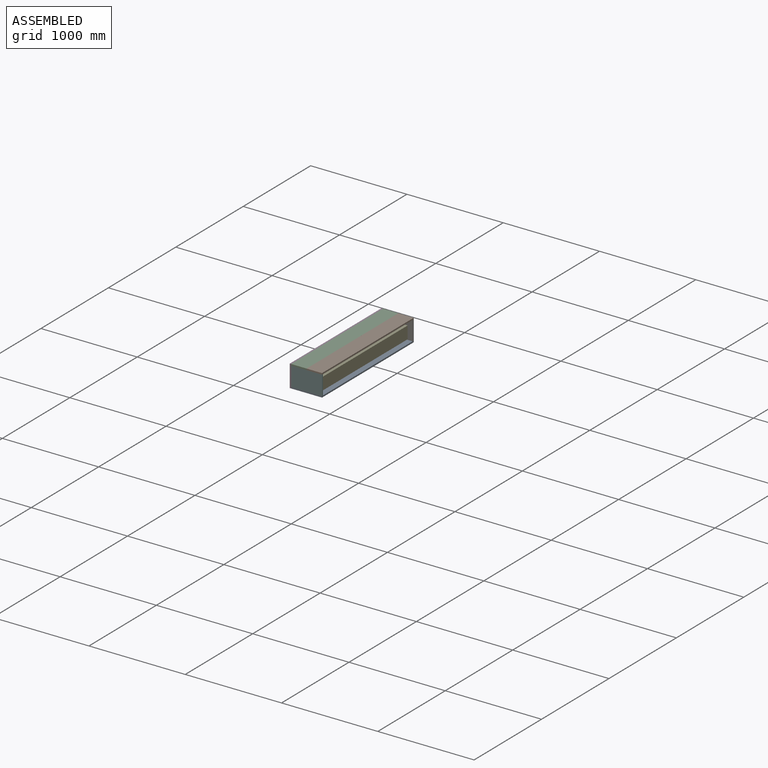
[diagram: assembled view]
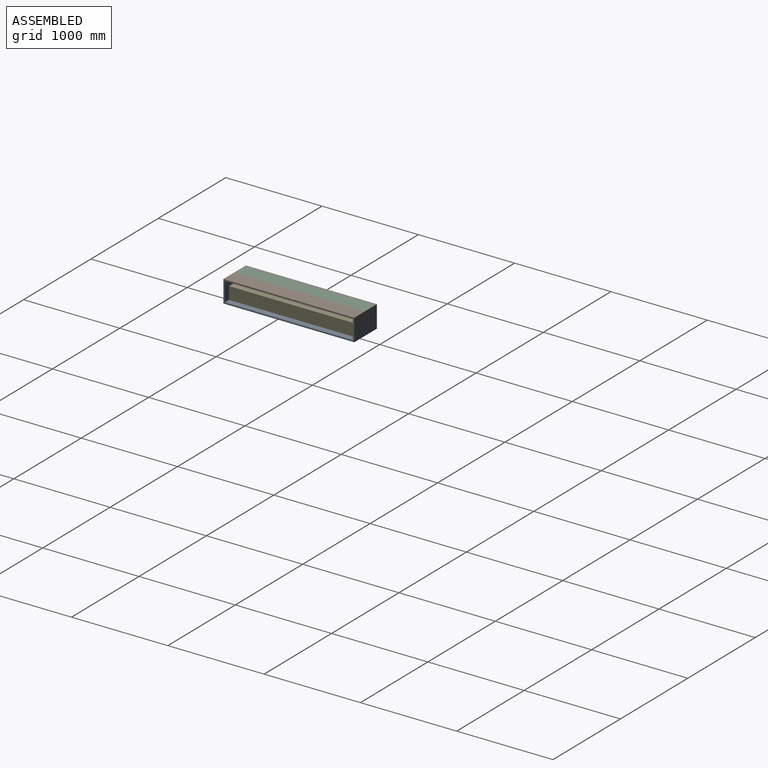
[diagram: assembled view, second angle]
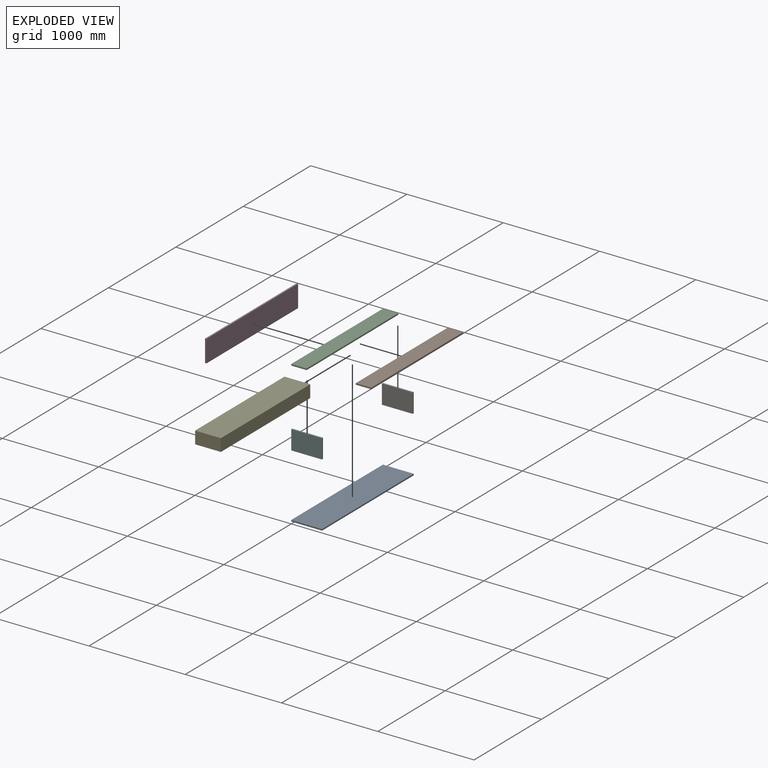
[diagram: exploded view]
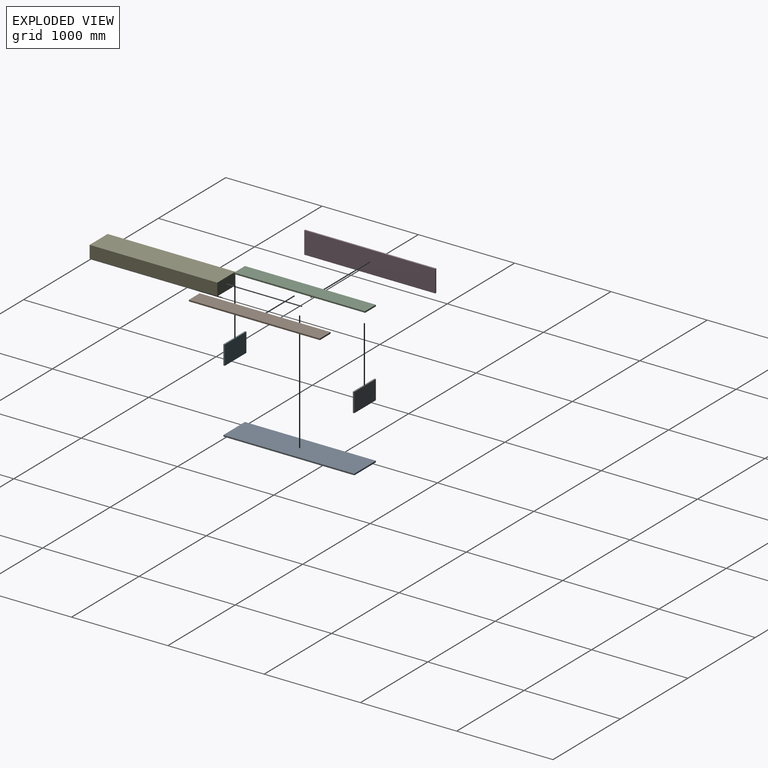
[diagram: exploded view, second angle]
FCSTD DOCUMENT  (FreeCAD 1.0R39109 (Git))
Label: piano_table
License: All rights reserved
LicenseURL: https://en.wikipedia.org/wiki/All_rights_reserved
objects: TechDraw::DrawViewDimension×10, App::Link×7, Part::Box×6, App::FeaturePython×6, TechDraw::DrawProjGroupItem×5, TechDraw::DrawSVGTemplate×3, TechDraw::DrawPage×3, App::DocumentObjectGroup×2, Spreadsheet::Sheet×1, Assembly::JointGroup×1, Assembly::AssemblyObject×1, TechDraw::DrawViewImage×1
note: 16 computed .brp shape members not serialized (recipe doc carries the construction recipe); baked Part::Feature solids carry a one-line shape summary decoded from their .brp

FEATURE [Spreadsheet::Sheet] Spreadsheet  label="Grundmaße"
  cells = A1='p145_width; B1=1326; A2='p145_depth; B2=268; A3='p145_height; B3=129; A4='box_inner_width; B4=1330; A5='box_inner_depth; B5=320; A6='box_inner_height; B6=200; A7='sheet_thickness; B7=15
FEATURE [Part::Box] Box  label="Seitenteil"
  AttacherType = Attacher::AttachEngine3D
  Height = 200
  Length = 320
  Width = 15
  expr: Height = Spreadsheet.B6
  expr: Length = Spreadsheet.B5
  expr: Width = Spreadsheet.B7
FEATURE [Part::Box] Box001  label="Boden"
  AttacherType = Attacher::AttachEngine3D
  Height = 15
  Length = 320
  Width = 1360
  expr: Height = Spreadsheet.B7
  expr: Length = Spreadsheet.B5
  expr: Width = Spreadsheet.B4 + 2 * Spreadsheet.B7
FEATURE [Part::Box] Box002  label="Klappe_oben"
  AttacherType = Attacher::AttachEngine3D
  Height = 15
  Length = 160
  Width = 1360
  expr: Height = Spreadsheet.B7
  expr: Length = Spreadsheet.B5 / 2
  expr: Width = Spreadsheet.B4 + 2 * Spreadsheet.B7
FEATURE [Part::Box] Box003  label="Klappe_vorne"
  AttacherType = Attacher::AttachEngine3D
  Height = 230
  Length = 15
  Placement = pos=(-20,0,0) rot=(0,0,1;0rad)
  Width = 1360
  expr: Height = Spreadsheet.B6 + 2 * Spreadsheet.B7
  expr: Length = Spreadsheet.B7
  expr: Width = Spreadsheet.B4 + 2 * Spreadsheet.B7
FEATURE [Part::Box] Box004  label="Decke"
  AttacherType = Attacher::AttachEngine3D
  Height = 15
  Length = 160
  Width = 1360
  expr: Height = Spreadsheet.B7
  expr: Length = Spreadsheet.B5 / 2
  expr: Width = Spreadsheet.B4 + 2 * Spreadsheet.B7
FEATURE [App::DocumentObjectGroup] Group  label="Box"
  Group = -> [Box,Box001,Box002,Box003,Box004]
FEATURE [App::Link] Boden  label="Boden001"
  LinkedObject = -> Box001
FEATURE [App::FeaturePython] GroundedJoint  # Assembly grounded joint (typed FeaturePython)
  ObjectToGround = -> Boden
FEATURE [App::Link] Seitenteil  label="Seitenteil001"
  LinkPlacement = pos=(-2.2e-14,0,15) rot=(0,0,1;0rad)
  LinkedObject = -> Box
  Placement = pos=(-2.2e-14,0,15) rot=(0,0,1;0rad)
FEATURE [App::Link] Seitenteil001  label="Seitenteil002"
  LinkPlacement = pos=(-1.51e-14,1345,15) rot=(0,0,1;0rad)
  LinkedObject = -> Box
  Placement = pos=(-1.51e-14,1345,15) rot=(0,0,1;0rad)
FEATURE [App::Link] Decke  label="Decke001"
  LinkPlacement = pos=(160,0,215) rot=(0,0,1;0rad)
  LinkedObject = -> Box004
  Placement = pos=(160,0,215) rot=(0,0,1;0rad)
FEATURE [App::FeaturePython] Joint  label="Fixed"  # Assembly joint (typed FeaturePython)
  Activated = true
  AngleMax = 0
  AngleMin = 0
  Detach1 = false
  Detach2 = false
  Distance = 0
  Distance2 = 0
  EnableAngleMax = false
  EnableAngleMin = false
  EnableLengthMax = false
  EnableLengthMin = false
  JointType = 0 (Fixed)
  LengthMax = 0
  LengthMin = 0
  Placement1 = pos=(320,0,0) rot=(0,0,1;0rad)
  Placement2 = pos=(320,0,15) rot=(0,0,1;0rad)
  Reference1 = -> Assembly [Seitenteil.Vertex6,Seitenteil.Vertex6]
  Reference2 = -> Assembly [Boden.Vertex5,Boden.Vertex5]
FEATURE [App::FeaturePython] Joint001  label="Fixed001"  # Assembly joint (typed FeaturePython)
  Activated = true
  AngleMax = 0
  AngleMin = 0
  Detach1 = false
  Detach2 = false
  Distance = 0
  Distance2 = 0
  EnableAngleMax = false
  EnableAngleMin = false
  EnableLengthMax = false
  EnableLengthMin = false
  JointType = 0 (Fixed)
  LengthMax = 0
  LengthMin = 0
  Placement1 = pos=(320,15,0) rot=(0,0,1;0rad)
  Placement2 = pos=(320,1360,15) rot=(0,0,1;0rad)
  Reference1 = -> Assembly [Seitenteil001.Edge7,Seitenteil001.Vertex8]
  Reference2 = -> Assembly [Boden.Edge7,Boden.Vertex7]
FEATURE [App::FeaturePython] Joint002  label="Fixed002"  # Assembly joint (typed FeaturePython)
  Activated = true
  AngleMax = 0
  AngleMin = 0
  Detach1 = false
  Detach2 = false
  Distance = 0
  Distance2 = 0
  EnableAngleMax = false
  EnableAngleMin = false
  EnableLengthMax = false
  EnableLengthMin = false
  JointType = 0 (Fixed)
  LengthMax = 0
  LengthMin = 0
  Placement1 = pos=(160,0,0) rot=(0,0,1;0rad)
  Placement2 = pos=(320,0,200) rot=(0,0,1;0rad)
  Reference1 = -> Assembly [Decke.Edge5,Decke.Vertex6]
  Reference2 = -> Assembly [Seitenteil.Edge5,Seitenteil.Vertex5]
FEATURE [Part::Box] Box005  label="P145"
  AttacherType = Attacher::AttachEngine3D
  Height = 129
  Length = 268
  Width = 1326
  expr: Height = Spreadsheet.B3
  expr: Length = Spreadsheet.B2
  expr: Width = Spreadsheet.B1
FEATURE [App::FeaturePython] Joint004  label="Revolute"  # Assembly joint (typed FeaturePython)
  Activated = true
  AngleMax = 180
  AngleMin = 0
  Detach1 = false
  Detach2 = false
  Distance = 0
  Distance2 = 0
  EnableAngleMax = true
  EnableAngleMin = true
  EnableLengthMax = false
  EnableLengthMin = false
  JointType = 1 (Revolute)
  LengthMax = 0
  LengthMin = 0
  Offset2 = pos=(0,0,680) rot=(0,0,1;0rad)
  Placement1 = pos=(0,680,15) rot=(0.57735,0.57735,0.57735;4.18879rad)
  Placement2 = pos=(160,680,15) rot=(0.57735,0.57735,0.57735;4.18879rad)
  Reference1 = -> Assembly [Decke.Edge2,Decke.Edge2]
  Reference2 = -> Assembly [Klappe_oben.Edge6,Klappe_oben.Vertex5]
  expr: .Offset2.Base.z = (Spreadsheet.B4 + 2 * Spreadsheet.B7) / 2
FEATURE [App::Link] Klappe_oben  label="Klappe_oben001"
  LinkPlacement = pos=(9.4e-15,-2.75e-14,215) rot=(0,0,1;0rad)
  LinkedObject = -> Box002
  Placement = pos=(9.4e-15,-2.75e-14,215) rot=(0,0,1;0rad)
FEATURE [App::Link] Klappe_vorne  label="Klappe_vorne001"
  LinkPlacement = pos=(1.617e-13,-1.022e-13,230) rot=(0,1,0;3.14159rad)
  LinkedObject = -> Box003
  Placement = pos=(1.617e-13,-1.022e-13,230) rot=(0,1,0;3.14159rad)
FEATURE [App::FeaturePython] Joint005  label="Fixed003"  # Assembly joint (typed FeaturePython)
  Activated = true
  AngleMax = 0
  AngleMin = 0
  Detach1 = false
  Detach2 = false
  Distance = 0
  Distance2 = 0
  EnableAngleMax = false
  EnableAngleMin = false
  EnableLengthMax = false
  EnableLengthMin = false
  JointType = 0 (Fixed)
  LengthMax = 0
  LengthMin = 0
  Offset2 = pos=(0,0,0) rot=(0,0,1;3.14159rad)
  Placement1 = pos=(0,680,15) rot=(0.57735,0.57735,0.57735;4.18879rad)
  Placement2 = pos=(0,680,0) rot=(0.57735,-0.57735,-0.57735;4.18879rad)
  Reference1 = -> Assembly [Klappe_oben.Edge2,Klappe_oben.Edge2]
  Reference2 = -> Assembly [Klappe_vorne.Edge4,Klappe_vorne.Edge4]
FEATURE [Assembly::JointGroup] Joints
  Group = -> [GroundedJoint,Joint,Joint001,Joint002,Joint004,Joint005]
FEATURE [App::Link] P145  label="P146"
  LinkPlacement = pos=(0,22.2271,20.5175) rot=(0,0,1;0rad)
  LinkedObject = -> Box005
  Placement = pos=(0,22.2271,20.5175) rot=(0,0,1;0rad)
FEATURE [Assembly::AssemblyObject] Assembly
  Group = -> [Joints,Boden,GroundedJoint,Seitenteil,Seitenteil001,Klappe_oben,Klappe_vorne,Decke,Joint,Joint001,Joint002,Joint004,Joint005,P145]
  Origin = -> Origin001
  Type = Assembly
FEATURE [TechDraw::DrawSVGTemplate] Template  label="Vorlage"
  Height = 210
  Orientation = 1
  Template = <path>
  Width = 297
FEATURE [TechDraw::DrawViewImage] ActiveView  label="3D-Ansicht Box"
  Height = 120
  ImageFile = <userpath>/.cache/FreeCAD/Cache/FreeCAD_Doc_d5f3bbb1-b6e5-4061-a846-a47aa6d80b60_344364_765067/PageActiveViewNEHUHP.png
  LockPosition = false
  Rotation = 0
  ScaleType = 2
  Width = 228
  X = 147.175
  Y = 130.275
FEATURE [TechDraw::DrawPage] Page  label="Übersicht"
  KeepUpdated = true
  NextBalloonIndex = 1
  ProjectionType = 0
  Template = -> Template
  Views = -> [ActiveView]
FEATURE [TechDraw::DrawSVGTemplate] Template001  label="Vorlage001"
  Height = 210
  Orientation = 1
  Template = <path>
  Width = 297
FEATURE [TechDraw::DrawProjGroupItem] View  label="Bodenplatte Draufsicht"
  CoarseView = false
  Direction = (0,0,1)
  Focus = 100
  HardHidden = false
  IsoCount = 0
  IsoHidden = false
  IsoVisible = false
  LockPosition = false
  Perspective = false
  Rotation = 0
  RotationVector = (1,0,0)
  Scale = 0.1
  ScaleType = 2
  ScrubCount = 1
  SeamHidden = false
  SeamVisible = false
  SmoothHidden = false
  SmoothVisible = true
  Type = 0
  X = 106.179
  XDirection = (1e-16,-1,0)
  XSource = -> [Boden]
  Y = 157.543
FEATURE [TechDraw::DrawViewDimension] Dimension  label="Maß"
  AngleOverride = false
  Arbitrary = false
  ArbitraryTolerances = false
  BoxCorners = (2) [(-68.5,-16,0),(68.5,16,0)]
  EqualTolerance = true
  ExtensionAngle = 0
  FormatSpec = %.2w
  FormatSpecOverTolerance = %+.2w
  FormatSpecUnderTolerance = %+.2w
  Inverted = false
  LineAngle = 0
  LockPosition = false
  MeasureType = 1
  OverTolerance = 0
  References2D = -> [View]
  Rotation = 0
  ScaleType = 0
  TheoreticalExact = false
  Type = 2
  UnderTolerance = 0
  X = -81.6796
  Y = 0
FEATURE [TechDraw::DrawViewDimension] Dimension001  label="Maß001"
  AngleOverride = false
  Arbitrary = false
  ArbitraryTolerances = false
  BoxCorners = (2) [(-68.5,-16,0),(68.5,16,0)]
  EqualTolerance = true
  ExtensionAngle = 0
  FormatSpec = %.2w
  FormatSpecOverTolerance = %+.2w
  FormatSpecUnderTolerance = %+.2w
  Inverted = false
  LineAngle = 0
  LockPosition = false
  MeasureType = 1
  OverTolerance = 0
  References2D = -> [View]
  Rotation = 0
  ScaleType = 0
  TheoreticalExact = false
  Type = 1
  UnderTolerance = 0
  X = 0
  Y = 29.2669
FEATURE [TechDraw::DrawProjGroupItem] View001  label="Seitenteil Seitenansicht"
  CoarseView = false
  Direction = (0,-1,0)
  Focus = 100
  HardHidden = false
  IsoCount = 0
  IsoHidden = false
  IsoVisible = false
  LockPosition = false
  Perspective = false
  Rotation = 0
  RotationVector = (1,0,0)
  Scale = 0.1
  ScaleType = 2
  ScrubCount = 1
  SeamHidden = false
  SeamVisible = false
  SmoothHidden = false
  SmoothVisible = true
  Source = -> [Box]
  Type = 0
  X = 233.818
  XDirection = (1,0,0)
  Y = 132.32
FEATURE [TechDraw::DrawViewDimension] Dimension002  label="Maß002"
  AngleOverride = false
  Arbitrary = false
  ArbitraryTolerances = false
  BoxCorners = (2) [(-16,-10,0),(16,10,0)]
  EqualTolerance = true
  ExtensionAngle = 0
  FormatSpec = %.2w
  FormatSpecOverTolerance = %+.2w
  FormatSpecUnderTolerance = %+.2w
  Inverted = false
  LineAngle = 0
  LockPosition = false
  MeasureType = 1
  OverTolerance = 0
  References2D = -> [View001]
  Rotation = 0
  ScaleType = 0
  TheoreticalExact = false
  Type = 2
  UnderTolerance = 0
  X = -27.7272
  Y = 0
FEATURE [TechDraw::DrawViewDimension] Dimension003  label="Maß003"
  AngleOverride = false
  Arbitrary = false
  ArbitraryTolerances = false
  BoxCorners = (2) [(-16,-10,0),(16,10,0)]
  EqualTolerance = true
  ExtensionAngle = 0
  FormatSpec = %.2w
  FormatSpecOverTolerance = %+.2w
  FormatSpecUnderTolerance = %+.2w
  Inverted = false
  LineAngle = 0
  LockPosition = false
  MeasureType = 1
  OverTolerance = 0
  References2D = -> [View001]
  Rotation = 0
  ScaleType = 0
  TheoreticalExact = false
  Type = 1
  UnderTolerance = 0
  X = 0
  Y = 21.3875
FEATURE [TechDraw::DrawProjGroupItem] View002  label="Decke Draufsicht"
  CoarseView = false
  Direction = (0,0,1)
  Focus = 100
  HardHidden = false
  IsoCount = 0
  IsoHidden = false
  IsoVisible = false
  LockPosition = false
  Perspective = false
  Rotation = 0
  RotationVector = (1,0,0)
  Scale = 0.1
  ScaleType = 2
  ScrubCount = 1
  SeamHidden = false
  SeamVisible = false
  SmoothHidden = false
  SmoothVisible = true
  Source = -> [Box004]
  Type = 0
  X = 106.179
  XDirection = (1e-16,-1,0)
  Y = 91.4544
FEATURE [TechDraw::DrawViewDimension] Dimension004  label="Maß004"
  AngleOverride = false
  Arbitrary = false
  ArbitraryTolerances = false
  BoxCorners = (2) [(-68.5,-8,0),(68.5,8,0)]
  EqualTolerance = true
  ExtensionAngle = 0
  FormatSpec = %.2w
  FormatSpecOverTolerance = %+.2w
  FormatSpecUnderTolerance = %+.2w
  Inverted = false
  LineAngle = 0
  LockPosition = false
  MeasureType = 1
  OverTolerance = 0
  References2D = -> [View002]
  Rotation = 0
  ScaleType = 0
  TheoreticalExact = false
  Type = 2
  UnderTolerance = 0
  X = -80.2087
  Y = 0
FEATURE [TechDraw::DrawViewDimension] Dimension005  label="Maß005"
  AngleOverride = false
  Arbitrary = false
  ArbitraryTolerances = false
  BoxCorners = (2) [(-68.5,-8,0),(68.5,8,0)]
  EqualTolerance = true
  ExtensionAngle = 0
  FormatSpec = %.2w
  FormatSpecOverTolerance = %+.2w
  FormatSpecUnderTolerance = %+.2w
  Inverted = false
  LineAngle = 0
  LockPosition = false
  MeasureType = 1
  OverTolerance = 0
  References2D = -> [View002]
  Rotation = 0
  ScaleType = 0
  TheoreticalExact = false
  Type = 1
  UnderTolerance = 0
  X = 0
  Y = 20.53
FEATURE [TechDraw::DrawPage] Page001  label="Bodenplatte"
  KeepUpdated = true
  NextBalloonIndex = 1
  ProjectionType = 0
  Template = -> Template001
  Views = -> [View,Dimension,Dimension001,View001,Dimension002,Dimension003,View002,Dimension004,Dimension005]
FEATURE [App::DocumentObjectGroup] Group001  label="Technical Drawings"
  Group = -> [Page,Page001]
FEATURE [TechDraw::DrawProjGroupItem] View003  label="Klappe oben Draufsicht"
  CoarseView = false
  Direction = (0,0,1)
  Focus = 100
  HardHidden = false
  IsoCount = 0
  IsoHidden = false
  IsoVisible = false
  LockPosition = false
  Perspective = false
  Rotation = 0
  RotationVector = (1,0,0)
  Scale = 0.1
  ScaleType = 2
  ScrubCount = 1
  SeamHidden = false
  SeamVisible = false
  SmoothHidden = false
  SmoothVisible = true
  Source = -> [Box002]
  Type = 0
  X = 152.076
  XDirection = (1e-16,-1,0)
  Y = 93.5483
FEATURE [TechDraw::DrawViewDimension] Dimension006  label="Maß006"
  AngleOverride = false
  Arbitrary = false
  ArbitraryTolerances = false
  BoxCorners = (2) [(-68.5,-8,0),(68.5,8,0)]
  EqualTolerance = true
  ExtensionAngle = 0
  FormatSpec = %.2w
  FormatSpecOverTolerance = %+.2w
  FormatSpecUnderTolerance = %+.2w
  Inverted = false
  LineAngle = 0
  LockPosition = false
  MeasureType = 1
  OverTolerance = 0
  References2D = -> [View003]
  Rotation = 0
  ScaleType = 0
  TheoreticalExact = false
  Type = 0
  UnderTolerance = 0
  X = -82.7898
  Y = 0
FEATURE [TechDraw::DrawViewDimension] Dimension007  label="Maß007"
  AngleOverride = false
  Arbitrary = false
  ArbitraryTolerances = false
  BoxCorners = (2) [(-68.5,-8,0),(68.5,8,0)]
  EqualTolerance = true
  ExtensionAngle = 0
  FormatSpec = %.2w
  FormatSpecOverTolerance = %+.2w
  FormatSpecUnderTolerance = %+.2w
  Inverted = false
  LineAngle = 0
  LockPosition = false
  MeasureType = 1
  OverTolerance = 0
  References2D = -> [View003]
  Rotation = 0
  ScaleType = 0
  TheoreticalExact = false
  Type = 1
  UnderTolerance = 0
  X = 0
  Y = 22.2802
FEATURE [TechDraw::DrawProjGroupItem] View004  label="Klappe vorne"
  CoarseView = false
  Direction = (-1,-1e-16,0)
  Focus = 100
  HardHidden = false
  IsoCount = 0
  IsoHidden = false
  IsoVisible = false
  LockPosition = false
  Perspective = false
  Rotation = 0
  RotationVector = (1,0,0)
  Scale = 0.1
  ScaleType = 2
  ScrubCount = 1
  SeamHidden = false
  SeamVisible = false
  SmoothHidden = false
  SmoothVisible = true
  Source = -> [Box003]
  Type = 0
  X = 152.076
  XDirection = (1e-16,-1,0)
  Y = 151.085
FEATURE [TechDraw::DrawSVGTemplate] Template002  label="Vorlage002"
  Height = 210
  Orientation = 1
  Template = <path>
  Width = 297
FEATURE [TechDraw::DrawViewDimension] Dimension008  label="Maß008"
  AngleOverride = false
  Arbitrary = false
  ArbitraryTolerances = false
  BoxCorners = (2) [(-68.5,-12,0),(68.5,12,0)]
  EqualTolerance = true
  ExtensionAngle = 0
  FormatSpec = %.2w
  FormatSpecOverTolerance = %+.2w
  FormatSpecUnderTolerance = %+.2w
  Inverted = false
  LineAngle = 0
  LockPosition = false
  MeasureType = 1
  OverTolerance = 0
  References2D = -> [View004]
  Rotation = 0
  ScaleType = 0
  TheoreticalExact = false
  Type = 1
  UnderTolerance = 0
  X = 0
  Y = 23.5444
FEATURE [TechDraw::DrawViewDimension] Dimension009  label="Maß009"
  AngleOverride = false
  Arbitrary = false
  ArbitraryTolerances = false
  BoxCorners = (2) [(-68.5,-12,0),(68.5,12,0)]
  EqualTolerance = true
  ExtensionAngle = 0
  FormatSpec = %.2w
  FormatSpecOverTolerance = %+.2w
  FormatSpecUnderTolerance = %+.2w
  Inverted = false
  LineAngle = 0
  LockPosition = false
  MeasureType = 1
  OverTolerance = 0
  References2D = -> [View004]
  Rotation = 0
  ScaleType = 0
  TheoreticalExact = false
  Type = 2
  UnderTolerance = 0
  X = -79.4941
  Y = 0
FEATURE [TechDraw::DrawPage] Page002  label="Klappe"
  KeepUpdated = true
  NextBalloonIndex = 1
  ProjectionType = 0
  Template = -> Template002
  Views = -> [View003,Dimension006,Dimension007,View004,Dimension008,Dimension009]
note: 3 file-system paths scrubbed to <path> (originals preserved in the JSON sidecar)
